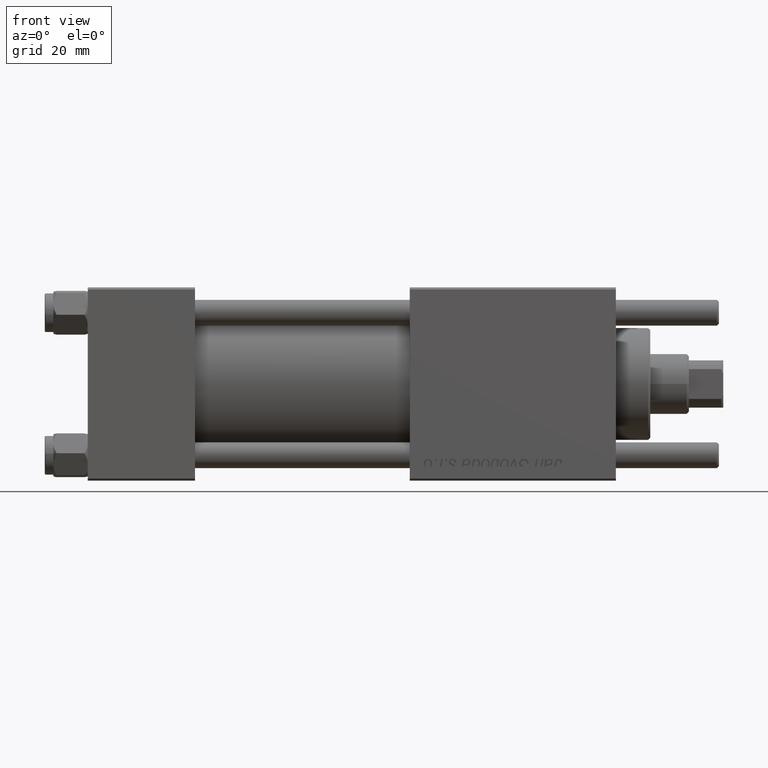
[diagram: clean part render]
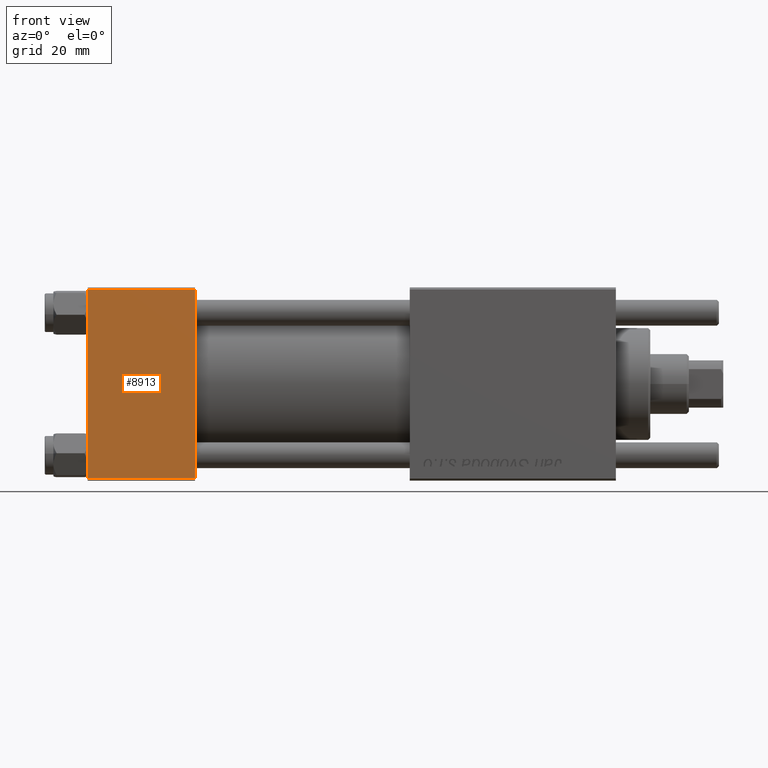
[diagram: same view with one face highlighted and labeled with its STEP entity id]
A machine part, front view. The second image highlights one B-rep face of the part: STEP entity #8913.
In plain terms, the highlighted planar face has unit normal (0, 1, 0).
Its self-contained STEP definition (entity closure, byte-faithful):
#968 = LINE ( 'NONE', #13952, #35640 ) ;
#1653 = EDGE_CURVE ( 'NONE', #19647, #39102, #33299, .T. ) ;
#4587 = VECTOR ( 'NONE', #41730, 1000.000000000000000 ) ;
#7167 = CARTESIAN_POINT ( 'NONE',  ( 25.00000000000000000, -22.50000000000000000, -21.99999999999998579 ) ) ;
#7170 = EDGE_LOOP ( 'NONE', ( #53357, #13338, #35364, #11541 ) ) ;
#8489 = CARTESIAN_POINT ( 'NONE',  ( 25.00000000000000000, -22.50000000000000000, -21.99999999999997158 ) ) ;
#8913 = ADVANCED_FACE ( 'NONE', ( #55282 ), #12100, .F. ) ;
#11541 = ORIENTED_EDGE ( 'NONE', *, *, #30455, .T. ) ;
#12062 = CARTESIAN_POINT ( 'NONE',  ( 0.000000000000000000, -22.50000000000000000, -21.99999999999997158 ) ) ;
#12100 = PLANE ( 'NONE',  #29028 ) ;
#12561 = DIRECTION ( 'NONE',  ( 0.000000000000000000, 0.000000000000000000, -1.000000000000000000 ) ) ;
#13338 = ORIENTED_EDGE ( 'NONE', *, *, #56969, .T. ) ;
#13952 = CARTESIAN_POINT ( 'NONE',  ( 0.000000000000000000, -22.50000000000000000, 22.50000000000000000 ) ) ;
#14855 = VECTOR ( 'NONE', #55407, 1000.000000000000000 ) ;
#15698 = EDGE_CURVE ( 'NONE', #17869, #40743, #968, .T. ) ;
#16415 = CARTESIAN_POINT ( 'NONE',  ( 25.00000000000000000, -22.50000000000000000, 22.50000000000000000 ) ) ;
#17869 = VERTEX_POINT ( 'NONE', #54992 ) ;
#19647 = VERTEX_POINT ( 'NONE', #37247 ) ;
#19739 = VECTOR ( 'NONE', #12561, 1000.000000000000000 ) ;
#28937 = CARTESIAN_POINT ( 'NONE',  ( 25.00000000000000000, -22.50000000000000000, 22.00000000000000000 ) ) ;
#29028 = AXIS2_PLACEMENT_3D ( 'NONE', #16415, #33685, #51238 ) ;
#30455 = EDGE_CURVE ( 'NONE', #19647, #17869, #56260, .T. ) ;
#33299 = LINE ( 'NONE', #51133, #19739 ) ;
#33685 = DIRECTION ( 'NONE',  ( -0.000000000000000000, 1.000000000000000000, 0.000000000000000000 ) ) ;
#35364 = ORIENTED_EDGE ( 'NONE', *, *, #1653, .F. ) ;
#35640 = VECTOR ( 'NONE', #49329, 1000.000000000000000 ) ;
#37247 = CARTESIAN_POINT ( 'NONE',  ( 25.00000000000000000, -22.50000000000000000, 22.00000000000000000 ) ) ;
#39102 = VERTEX_POINT ( 'NONE', #8489 ) ;
#40743 = VERTEX_POINT ( 'NONE', #12062 ) ;
#41730 = DIRECTION ( 'NONE',  ( 1.000000000000000000, 0.000000000000000000, 0.000000000000000000 ) ) ;
#42864 = LINE ( 'NONE', #7167, #4587 ) ;
#49329 = DIRECTION ( 'NONE',  ( 0.000000000000000000, 0.000000000000000000, -1.000000000000000000 ) ) ;
#51133 = CARTESIAN_POINT ( 'NONE',  ( 25.00000000000000000, -22.50000000000000000, 22.50000000000000000 ) ) ;
#51238 = DIRECTION ( 'NONE',  ( 0.000000000000000000, -0.000000000000000000, 1.000000000000000000 ) ) ;
#53357 = ORIENTED_EDGE ( 'NONE', *, *, #15698, .T. ) ;
#54992 = CARTESIAN_POINT ( 'NONE',  ( 0.000000000000000000, -22.50000000000000000, 22.00000000000000000 ) ) ;
#55282 = FACE_OUTER_BOUND ( 'NONE', #7170, .T. ) ;
#55407 = DIRECTION ( 'NONE',  ( -1.000000000000000000, 0.000000000000000000, 0.000000000000000000 ) ) ;
#56260 = LINE ( 'NONE', #28937, #14855 ) ;
#56969 = EDGE_CURVE ( 'NONE', #40743, #39102, #42864, .T. ) ;